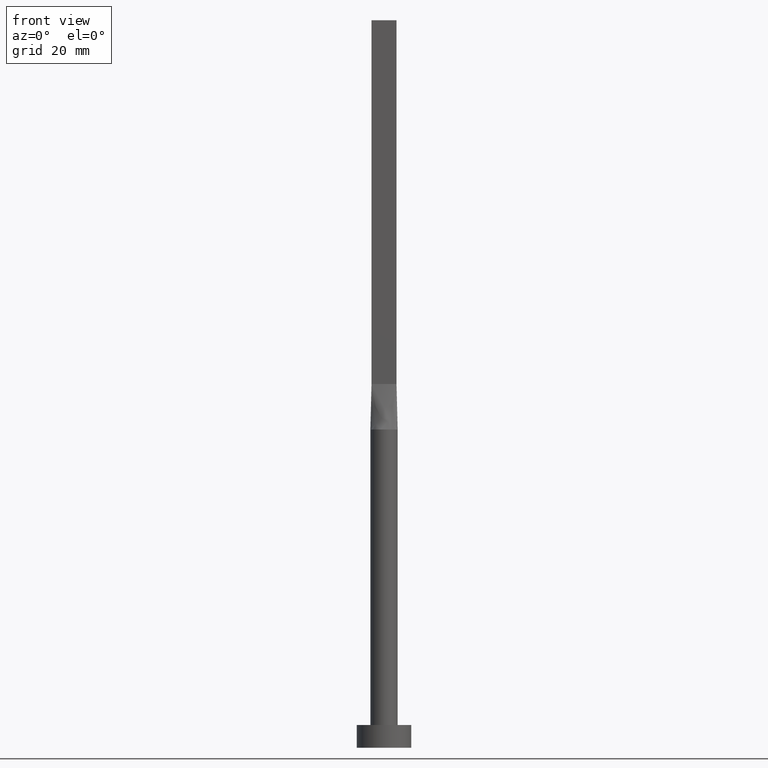
[diagram: clean part render]
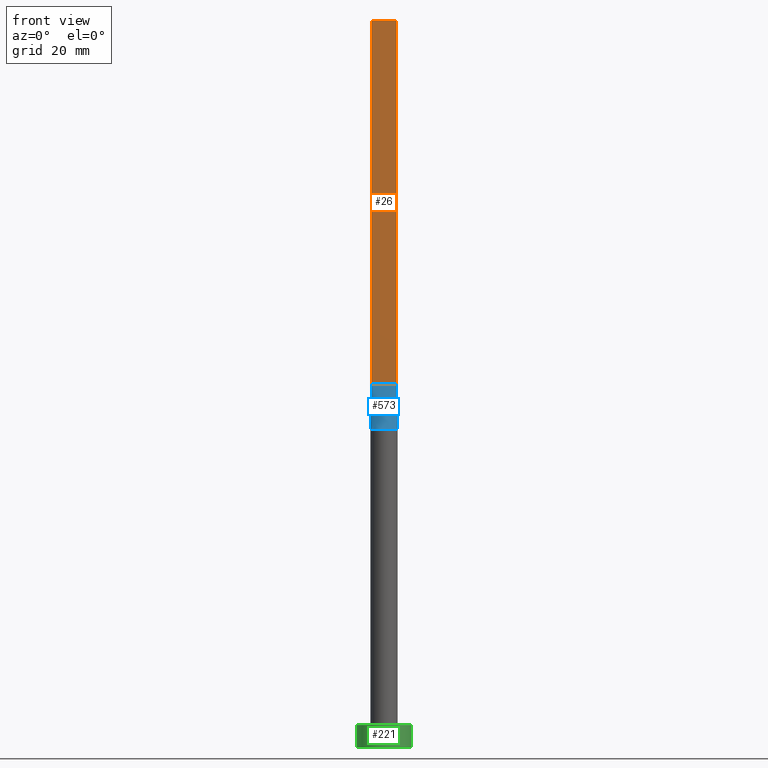
[diagram: same view with three faces highlighted in distinct colors, each labeled with its STEP entity id]
A machine part, front view with three faces highlighted in distinct colors.
Their STEP definitions:

[orange] entity #26 — the highlighted planar face has unit normal (0, 1, -0).
#1 = ORIENTED_EDGE ( 'NONE', *, *, #378, .F. ) ;
#8 = CARTESIAN_POINT ( 'NONE',  ( -2.750000000000000000, -0.4999999999999994449, 160.0000000000000000 ) ) ;
#26 = ADVANCED_FACE ( 'NONE', ( #266 ), #496, .F. ) ;
#42 = LINE ( 'NONE', #8, #455 ) ;
#51 = DIRECTION ( 'NONE',  ( 1.000000000000000000, -5.913830031739115543E-17, 0.000000000000000000 ) ) ;
#58 = LINE ( 'NONE', #116, #516 ) ;
#67 = EDGE_LOOP ( 'NONE', ( #321, #1, #187, #395 ) ) ;
#87 = DIRECTION ( 'NONE',  ( 1.000000000000000000, -5.913830031739115543E-17, 0.000000000000000000 ) ) ;
#102 = CARTESIAN_POINT ( 'NONE',  ( -2.750000000000000000, -0.4999999999999994449, 80.00000000000000000 ) ) ;
#116 = CARTESIAN_POINT ( 'NONE',  ( -2.750000000000000000, -0.4999999999999994449, 160.0000000000000000 ) ) ;
#187 = ORIENTED_EDGE ( 'NONE', *, *, #197, .F. ) ;
#197 = EDGE_CURVE ( 'NONE', #427, #304, #42, .T. ) ;
#210 = CARTESIAN_POINT ( 'NONE',  ( -2.750000000000000000, -0.4999999999999994449, 160.0000000000000000 ) ) ;
#265 = CARTESIAN_POINT ( 'NONE',  ( 2.750000000000000000, -0.4999999999999997780, 160.0000000000000000 ) ) ;
#266 = FACE_OUTER_BOUND ( 'NONE', #67, .T. ) ;
#304 = VERTEX_POINT ( 'NONE', #462 ) ;
#321 = ORIENTED_EDGE ( 'NONE', *, *, #458, .T. ) ;
#323 = CARTESIAN_POINT ( 'NONE',  ( 2.750000000000000000, -0.4999999999999997780, 80.00000000000000000 ) ) ;
#331 = DIRECTION ( 'NONE',  ( -0.000000000000000000, -0.000000000000000000, -1.000000000000000000 ) ) ;
#357 = VECTOR ( 'NONE', #547, 1000.000000000000000 ) ;
#367 = DIRECTION ( 'NONE',  ( 5.913830031739115543E-17, 1.000000000000000000, -0.000000000000000000 ) ) ;
#378 = EDGE_CURVE ( 'NONE', #304, #550, #412, .T. ) ;
#379 = CARTESIAN_POINT ( 'NONE',  ( -2.750000000000000000, -0.4999999999999994449, 80.00000000000000000 ) ) ;
#387 = VECTOR ( 'NONE', #51, 1000.000000000000000 ) ;
#395 = ORIENTED_EDGE ( 'NONE', *, *, #465, .T. ) ;
#412 = LINE ( 'NONE', #265, #357 ) ;
#413 = DIRECTION ( 'NONE',  ( -1.000000000000000000, 5.913830031739115543E-17, 0.000000000000000000 ) ) ;
#427 = VERTEX_POINT ( 'NONE', #210 ) ;
#448 = CARTESIAN_POINT ( 'NONE',  ( -2.750000000000000000, -0.4999999999999994449, 160.0000000000000000 ) ) ;
#450 = LINE ( 'NONE', #379, #387 ) ;
#455 = VECTOR ( 'NONE', #87, 1000.000000000000000 ) ;
#458 = EDGE_CURVE ( 'NONE', #565, #550, #450, .T. ) ;
#462 = CARTESIAN_POINT ( 'NONE',  ( 2.750000000000000000, -0.4999999999999997780, 160.0000000000000000 ) ) ;
#465 = EDGE_CURVE ( 'NONE', #427, #565, #58, .T. ) ;
#496 = PLANE ( 'NONE',  #514 ) ;
#514 = AXIS2_PLACEMENT_3D ( 'NONE', #448, #367, #413 ) ;
#516 = VECTOR ( 'NONE', #331, 1000.000000000000000 ) ;
#547 = DIRECTION ( 'NONE',  ( -0.000000000000000000, -0.000000000000000000, -1.000000000000000000 ) ) ;
#550 = VERTEX_POINT ( 'NONE', #323 ) ;
#565 = VERTEX_POINT ( 'NONE', #102 ) ;

[blue] entity #573 — the highlighted face is a freeform B-spline surface patch.
#15 = CARTESIAN_POINT ( 'NONE',  ( -0.9166666666666671848, -0.4999999999999995559, 79.99999999999998579 ) ) ;
#16 = ORIENTED_EDGE ( 'NONE', *, *, #566, .T. ) ;
#19 = LINE ( 'NONE', #501, #439 ) ;
#25 = CARTESIAN_POINT ( 'NONE',  ( 2.291666666666666075, -0.4999999999999997780, 79.99999999999998579 ) ) ;
#30 = ORIENTED_EDGE ( 'NONE', *, *, #458, .F. ) ;
#38 = EDGE_CURVE ( 'NONE', #365, #272, #134, .T. ) ;
#51 = DIRECTION ( 'NONE',  ( 1.000000000000000000, -5.913830031739115543E-17, 0.000000000000000000 ) ) ;
#55 = CARTESIAN_POINT ( 'NONE',  ( -1.882426928433514224, -2.362790634184934291, 69.99999999999998579 ) ) ;
#57 = CARTESIAN_POINT ( 'NONE',  ( -1.604166666666666963, -0.4999999999999995559, 79.99999999999998579 ) ) ;
#61 = CARTESIAN_POINT ( 'NONE',  ( 1.833333333333332593, -0.4999999999999997780, 79.99999999999998579 ) ) ;
#100 = ORIENTED_EDGE ( 'NONE', *, *, #320, .T. ) ;
#102 = CARTESIAN_POINT ( 'NONE',  ( -2.750000000000000000, -0.4999999999999994449, 80.00000000000000000 ) ) ;
#109 = CARTESIAN_POINT ( 'NONE',  ( 1.566158656300001395, -2.589797565249319256, 69.99999999999998579 ) ) ;
#114 = CARTESIAN_POINT ( 'NONE',  ( 1.604166666666666075, -0.4999999999999997780, 79.99999999999998579 ) ) ;
#134 = CIRCLE ( 'NONE', #195, 3.000000000000000444 ) ;
#141 = CARTESIAN_POINT ( 'NONE',  ( 0.000000000000000000, 0.000000000000000000, 70.00000000000000000 ) ) ;
#142 = CARTESIAN_POINT ( 'NONE',  ( -2.907609730299723250, -0.7786563145999485513, 70.00000000000001421 ) ) ;
#147 = CARTESIAN_POINT ( 'NONE',  ( 0.2291666666666659635, -0.4999999999999995559, 79.99999999999998579 ) ) ;
#149 = CARTESIAN_POINT ( 'NONE',  ( -2.951609730299722845, -0.5366563145999487805, 70.00000000000000000 ) ) ;
#182 = DIRECTION ( 'NONE',  ( -0.02015674154923151329, -0.003664862099860239936, -0.9997901152521495582 ) ) ;
#184 = CARTESIAN_POINT ( 'NONE',  ( -0.4583333333333340365, -0.4999999999999995559, 79.99999999999998579 ) ) ;
#190 = CARTESIAN_POINT ( 'NONE',  ( -1.833333333333333481, -0.4999999999999995559, 79.99999999999998579 ) ) ;
#195 = AXIS2_PLACEMENT_3D ( 'NONE', #141, #553, #497 ) ;
#223 = CARTESIAN_POINT ( 'NONE',  ( -0.4172881767044983592, -2.999999999999999556, 70.00000000000000000 ) ) ;
#225 = CARTESIAN_POINT ( 'NONE',  ( -0.8331239790496242081, -2.909606296598777231, 69.99999999999998579 ) ) ;
#229 = ORIENTED_EDGE ( 'NONE', *, *, #38, .T. ) ;
#230 = CARTESIAN_POINT ( 'NONE',  ( 1.882426928433513114, -2.362790634184936511, 70.00000000000001421 ) ) ;
#233 = CARTESIAN_POINT ( 'NONE',  ( -2.567367750129864845, -1.580669302822274691, 70.00000000000000000 ) ) ;
#239 = CARTESIAN_POINT ( 'NONE',  ( 2.951896064709005785, -0.5367080392066734262, 70.00000000000000000 ) ) ;
#243 = CARTESIAN_POINT ( 'NONE',  ( 2.850804865149861200, -0.5183281572999745013, 75.00000000000001421 ) ) ;
#252 = CARTESIAN_POINT ( 'NONE',  ( -2.951885853416577277, -0.5367063210726346068, 70.00000000000000000 ) ) ;
#253 = CARTESIAN_POINT ( 'NONE',  ( 2.907609730299723250, -0.7786563145999499946, 70.00000000000001421 ) ) ;
#254 = EDGE_LOOP ( 'NONE', ( #229, #100, #30, #16 ) ) ;
#272 = VERTEX_POINT ( 'NONE', #239 ) ;
#280 = CARTESIAN_POINT ( 'NONE',  ( -2.291666666666666519, -0.4999999999999994449, 79.99999999999998579 ) ) ;
#285 = CARTESIAN_POINT ( 'NONE',  ( -0.2291666666666674346, -0.4999999999999995559, 80.00000000000000000 ) ) ;
#286 = CARTESIAN_POINT ( 'NONE',  ( 2.567367750129864401, -1.580669302822276023, 70.00000000000001421 ) ) ;
#320 = EDGE_CURVE ( 'NONE', #272, #550, #341, .T. ) ;
#323 = CARTESIAN_POINT ( 'NONE',  ( 2.750000000000000000, -0.4999999999999997780, 80.00000000000000000 ) ) ;
#324 = CARTESIAN_POINT ( 'NONE',  ( 0.8331239790496235420, -2.909606296598777231, 70.00000000000001421 ) ) ;
#341 = LINE ( 'NONE', #243, #445 ) ;
#365 = VERTEX_POINT ( 'NONE', #252 ) ;
#369 = FACE_OUTER_BOUND ( 'NONE', #254, .T. ) ;
#372 = CARTESIAN_POINT ( 'NONE',  ( -1.566158656300002727, -2.589797565249318811, 70.00000000000000000 ) ) ;
#374 = B_SPLINE_SURFACE_WITH_KNOTS ( 'NONE', 3, 1, ( 
 ( #149, #554 ),
 ( #142, #451 ),
 ( #417, #280 ),
 ( #233, #190 ),
 ( #457, #57 ),
 ( #55, #463 ),
 ( #372, #15 ),
 ( #225, #184 ),
 ( #223, #285 ),
 ( #558, #147 ),
 ( #324, #506 ),
 ( #109, #460 ),
 ( #230, #419 ),
 ( #510, #114 ),
 ( #286, #61 ),
 ( #422, #25 ),
 ( #253, #475 ),
 ( #527, #392 ) ),
 .UNSPECIFIED., .F., .F., .F.,
 ( 4, 2, 2, 2, 2, 2, 2, 2, 4 ),
 ( 2, 2 ),
 ( 0.000000000000000000, 0.1250000000000000000, 0.2500000000000000000, 0.3750000000000000000, 0.5000000000000000000, 0.6250000000000000000, 0.7500000000000000000, 0.8750000000000000000, 1.000000000000000000 ),
 ( 0.000000000000000000, 1.000000000000000000 ),
 .UNSPECIFIED. ) ;
#379 = CARTESIAN_POINT ( 'NONE',  ( -2.750000000000000000, -0.4999999999999994449, 80.00000000000000000 ) ) ;
#387 = VECTOR ( 'NONE', #51, 1000.000000000000000 ) ;
#392 = CARTESIAN_POINT ( 'NONE',  ( 2.750000000000000000, -0.4999999999999997780, 80.00000000000000000 ) ) ;
#417 = CARTESIAN_POINT ( 'NONE',  ( -2.829409566978767110, -1.041313647073048854, 70.00000000000000000 ) ) ;
#419 = CARTESIAN_POINT ( 'NONE',  ( 1.145833333333332371, -0.4999999999999996669, 79.99999999999998579 ) ) ;
#422 = CARTESIAN_POINT ( 'NONE',  ( 2.829409566978765334, -1.041313647073049742, 70.00000000000001421 ) ) ;
#439 = VECTOR ( 'NONE', #182, 1000.000000000000114 ) ;
#445 = VECTOR ( 'NONE', #581, 1000.000000000000114 ) ;
#450 = LINE ( 'NONE', #379, #387 ) ;
#451 = CARTESIAN_POINT ( 'NONE',  ( -2.520833333333333037, -0.4999999999999994449, 79.99999999999998579 ) ) ;
#457 = CARTESIAN_POINT ( 'NONE',  ( -2.382399439808189356, -1.857547746650220599, 70.00000000000000000 ) ) ;
#458 = EDGE_CURVE ( 'NONE', #565, #550, #450, .T. ) ;
#460 = CARTESIAN_POINT ( 'NONE',  ( 0.9166666666666658525, -0.4999999999999995559, 79.99999999999998579 ) ) ;
#463 = CARTESIAN_POINT ( 'NONE',  ( -1.145833333333333703, -0.4999999999999995559, 79.99999999999998579 ) ) ;
#475 = CARTESIAN_POINT ( 'NONE',  ( 2.520833333333333037, -0.4999999999999997780, 79.99999999999998579 ) ) ;
#497 = DIRECTION ( 'NONE',  ( 1.000000000000000000, 0.000000000000000000, 0.000000000000000000 ) ) ;
#501 = CARTESIAN_POINT ( 'NONE',  ( -2.850804865149861644, -0.5183281572999741682, 75.00000000000001421 ) ) ;
#506 = CARTESIAN_POINT ( 'NONE',  ( 0.4583333333333325932, -0.4999999999999995559, 79.99999999999998579 ) ) ;
#510 = CARTESIAN_POINT ( 'NONE',  ( 2.382399439808186692, -1.857547746650222154, 70.00000000000001421 ) ) ;
#527 = CARTESIAN_POINT ( 'NONE',  ( 2.951609730299722401, -0.5366563145999492246, 70.00000000000000000 ) ) ;
#550 = VERTEX_POINT ( 'NONE', #323 ) ;
#553 = DIRECTION ( 'NONE',  ( 0.000000000000000000, 0.000000000000000000, 1.000000000000000000 ) ) ;
#554 = CARTESIAN_POINT ( 'NONE',  ( -2.750000000000000000, -0.4999999999999994449, 80.00000000000000000 ) ) ;
#558 = CARTESIAN_POINT ( 'NONE',  ( 0.4172881767044969714, -3.000000000000000444, 69.99999999999998579 ) ) ;
#565 = VERTEX_POINT ( 'NONE', #102 ) ;
#566 = EDGE_CURVE ( 'NONE', #565, #365, #19, .T. ) ;
#573 = ADVANCED_FACE ( 'NONE', ( #369 ), #374, .T. ) ;
#581 = DIRECTION ( 'NONE',  ( -0.02015674154923147166, 0.003664862099860250778, 0.9997901152521495582 ) ) ;

[green] entity #221 — the highlighted cylindrical surface (edge-blend (fillet) strip) has radius 6 mm, axis along (-0, -0, -1).
#18 = ORIENTED_EDGE ( 'NONE', *, *, #83, .F. ) ;
#23 = ORIENTED_EDGE ( 'NONE', *, *, #62, .T. ) ;
#53 = CIRCLE ( 'NONE', #540, 6.000000000000000888 ) ;
#62 = EDGE_CURVE ( 'NONE', #242, #140, #53, .T. ) ;
#77 = DIRECTION ( 'NONE',  ( -0.000000000000000000, -0.000000000000000000, -1.000000000000000000 ) ) ;
#82 = ORIENTED_EDGE ( 'NONE', *, *, #334, .T. ) ;
#83 = EDGE_CURVE ( 'NONE', #169, #140, #206, .T. ) ;
#86 = VECTOR ( 'NONE', #248, 1000.000000000000000 ) ;
#97 = ORIENTED_EDGE ( 'NONE', *, *, #461, .F. ) ;
#140 = VERTEX_POINT ( 'NONE', #548 ) ;
#167 = VERTEX_POINT ( 'NONE', #580 ) ;
#168 = LINE ( 'NONE', #432, #86 ) ;
#169 = VERTEX_POINT ( 'NONE', #533 ) ;
#185 = DIRECTION ( 'NONE',  ( 1.000000000000000000, 0.000000000000000000, 0.000000000000000000 ) ) ;
#193 = CARTESIAN_POINT ( 'NONE',  ( -6.000000000000000888, 0.000000000000000000, 0.000000000000000000 ) ) ;
#206 = LINE ( 'NONE', #428, #211 ) ;
#211 = VECTOR ( 'NONE', #77, 1000.000000000000000 ) ;
#221 = ADVANCED_FACE ( 'NONE', ( #360 ), #288, .T. ) ;
#242 = VERTEX_POINT ( 'NONE', #193 ) ;
#248 = DIRECTION ( 'NONE',  ( -0.000000000000000000, -0.000000000000000000, -1.000000000000000000 ) ) ;
#269 = CIRCLE ( 'NONE', #456, 6.000000000000000888 ) ;
#282 = DIRECTION ( 'NONE',  ( 0.000000000000000000, 0.000000000000000000, 1.000000000000000000 ) ) ;
#288 = CYLINDRICAL_SURFACE ( 'NONE', #569, 6.000000000000000888 ) ;
#297 = EDGE_LOOP ( 'NONE', ( #18, #97, #82, #23 ) ) ;
#322 = DIRECTION ( 'NONE',  ( 1.000000000000000000, 0.000000000000000000, 0.000000000000000000 ) ) ;
#329 = CARTESIAN_POINT ( 'NONE',  ( 0.000000000000000000, 0.000000000000000000, 5.000000000000000000 ) ) ;
#334 = EDGE_CURVE ( 'NONE', #167, #242, #168, .T. ) ;
#360 = FACE_OUTER_BOUND ( 'NONE', #297, .T. ) ;
#380 = DIRECTION ( 'NONE',  ( -1.000000000000000000, 0.000000000000000000, 0.000000000000000000 ) ) ;
#416 = DIRECTION ( 'NONE',  ( 0.000000000000000000, 0.000000000000000000, 1.000000000000000000 ) ) ;
#423 = CARTESIAN_POINT ( 'NONE',  ( 0.000000000000000000, 0.000000000000000000, 5.000000000000000000 ) ) ;
#428 = CARTESIAN_POINT ( 'NONE',  ( 6.000000000000000888, 7.347880794884120722E-16, 5.000000000000000000 ) ) ;
#431 = DIRECTION ( 'NONE',  ( -0.000000000000000000, -0.000000000000000000, -1.000000000000000000 ) ) ;
#432 = CARTESIAN_POINT ( 'NONE',  ( -6.000000000000000888, 0.000000000000000000, 5.000000000000000000 ) ) ;
#456 = AXIS2_PLACEMENT_3D ( 'NONE', #329, #416, #322 ) ;
#461 = EDGE_CURVE ( 'NONE', #167, #169, #269, .T. ) ;
#533 = CARTESIAN_POINT ( 'NONE',  ( 6.000000000000000888, 7.347880794884120722E-16, 5.000000000000000000 ) ) ;
#540 = AXIS2_PLACEMENT_3D ( 'NONE', #557, #282, #185 ) ;
#548 = CARTESIAN_POINT ( 'NONE',  ( 6.000000000000000888, 7.347880794884120722E-16, 0.000000000000000000 ) ) ;
#557 = CARTESIAN_POINT ( 'NONE',  ( 0.000000000000000000, 0.000000000000000000, 0.000000000000000000 ) ) ;
#569 = AXIS2_PLACEMENT_3D ( 'NONE', #423, #431, #380 ) ;
#580 = CARTESIAN_POINT ( 'NONE',  ( -6.000000000000000888, 0.000000000000000000, 5.000000000000000000 ) ) ;